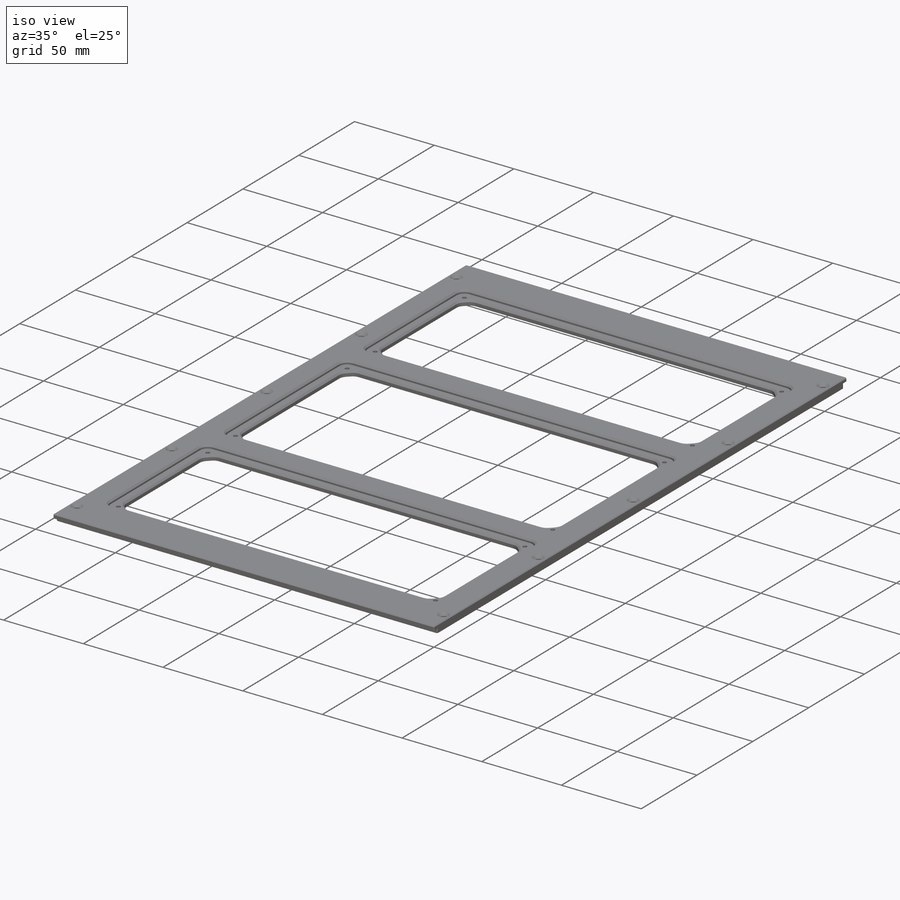
[diagram: iso view]
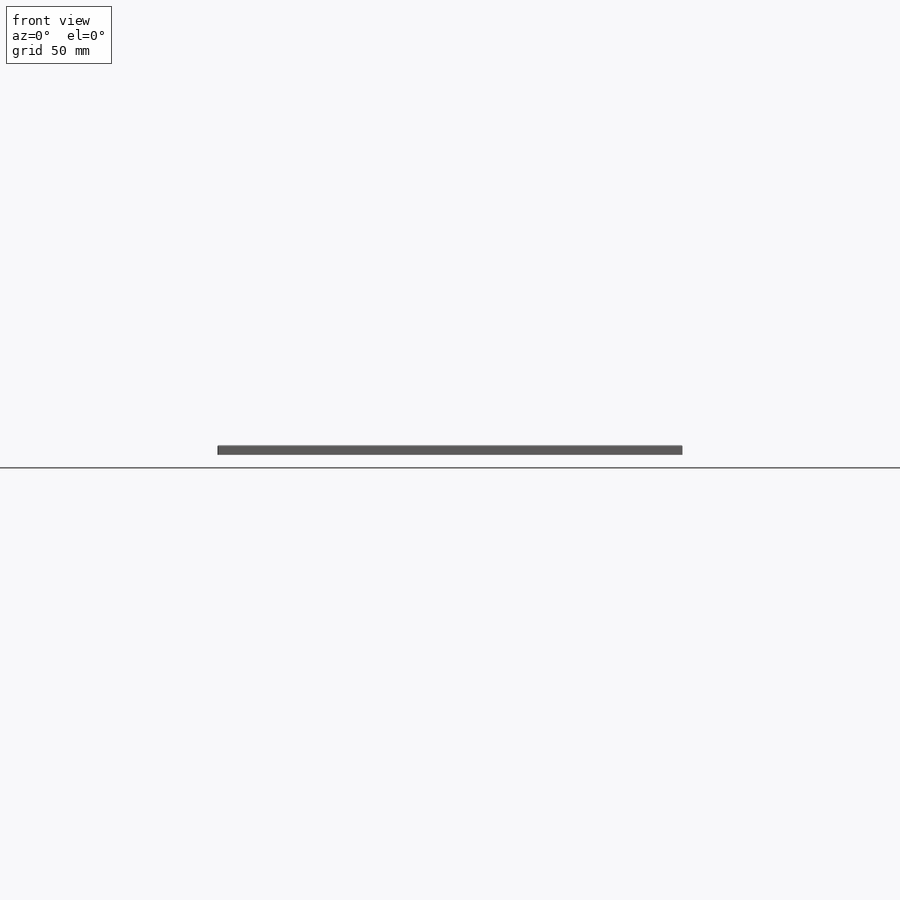
[diagram: front view]
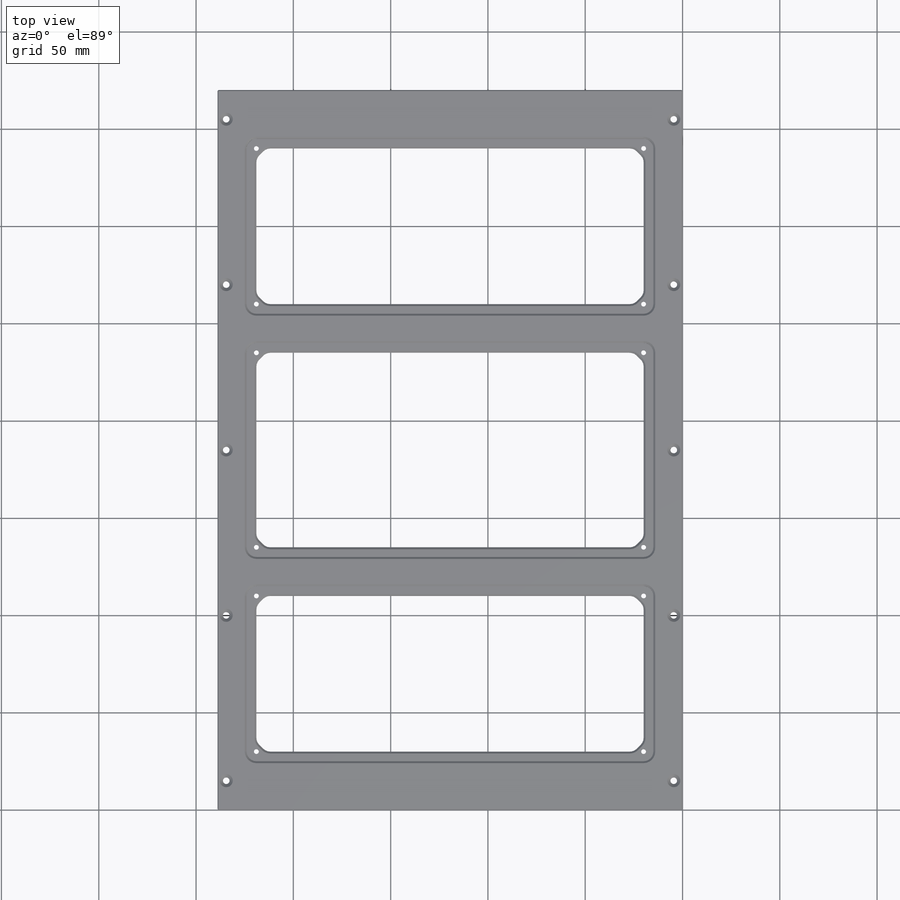
[diagram: top view]
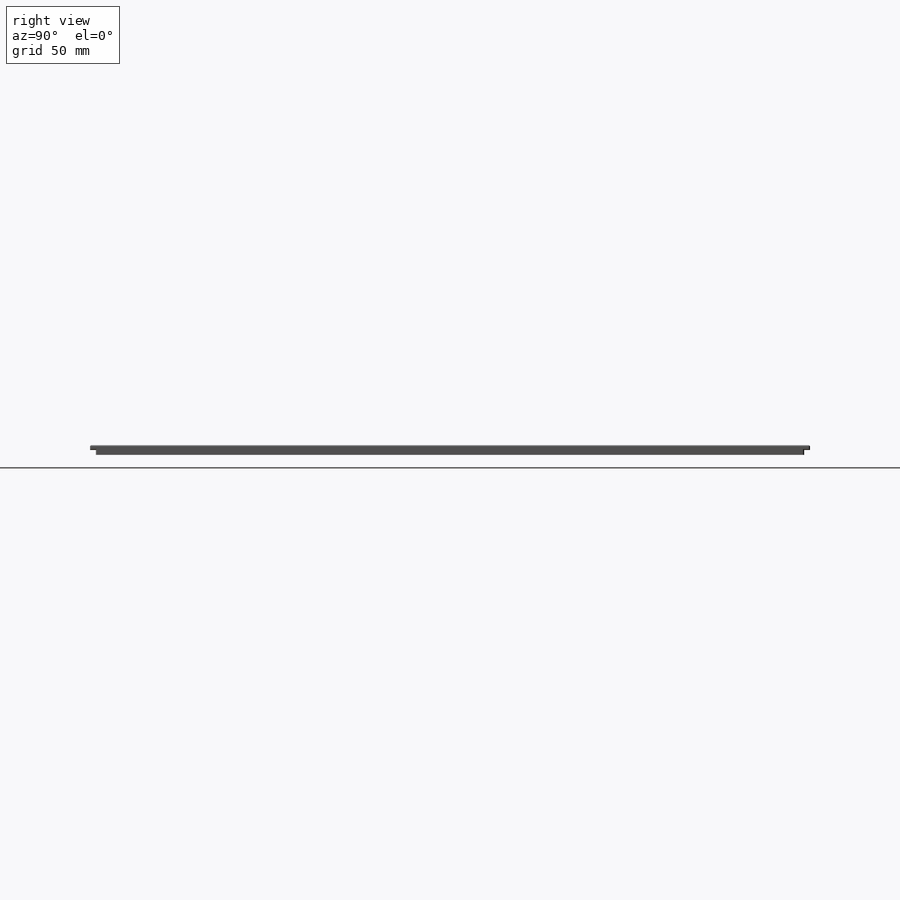
[diagram: right view]
SOLIDWORKS PART (.sldprt)
format: sldprt  version: not decoded by parser v0  size: 899,584 bytes
history: native  units: mm
features: sketch x11, thread x6, cut_extrude x4, chamfer x3, hole x2, mirror x2, material x1, extrude x1, fillet x1, plane x1 (+12 scaffold rows collapsed)
feature tree (44):
  scaffold x12  (default folders/planes/origin — collapsed)
  material  "2014 Alloy"
  sketch  "Sketch1"  dims[c1.D1=~33.806651mm c1.D2=~56.790227mm c2.D1=239.0mm c2.D2=370.0mm]
  extrude  "Boss-Extrude1"  Depth=5mm
  hole  "CSK for M3 Hex Socket Countersunk Cap Screw1"  Diameter=3.4mm Depth=5mm
  sketch  "Sketch3"  dims[D1=85.0mm D2=85.0mm D3=85.0mm D4=85.0mm D5=4.5mm]
  sketch  "Sketch2"  dims[hole-wizard template sketch: 56 standard entries collapsed; hole parameters kept: c17.Near C'Sink Dia.=6.72mm c17.D4=~3.666174mm c17.Near C'Sink Angle=90.0deg]
  sketch  "Sketch4"  dims[c1.D1=~106.368759mm c1.D2=~186.753205mm c2.D1=15.0mm c2.D2=130.0mm c2.D3=~77.945711mm c2.D4=189.0mm c3.D3=15.0mm c3.D4=15.0mm c3.D5=25.0mm]
  cut_extrude  "Cut-Extrude1"  Depth=2mm
  sketch  "Sketch5"  dims[c1.D1=~90.064408mm c1.D2=~175.079076mm c2.D1=5.0mm c2.D2=5.0mm c2.D3=~57.049049mm c2.D4=~145.517281mm c3.D3=5.0mm c3.D4=5.0mm c3.D5=~354.644656mm]
  cut_extrude  "Cut-Extrude2"  [1 undecoded]
  chamfer  "Chamfer1"  Distance=5mm Angle=45deg
  fillet  "Fillet1"  Radius=5mm
  sketch  "Sketch6"  dims[c1.D14=3.0mm c1.D20=3.0mm c1.D23=3.0mm c1.D6=7.0mm c1.D7=7.0mm c1.D8=7.0mm c1.D15=3.0mm c1.D1=40.0mm c1.D2=60.0mm c2.D1=30.0mm c2.D3=5.0mm c2.D4=7.0mm c2.D5=7.0mm c2.D6=7.0mm c2.D7=7.0mm c2.D8=5.0mm c2.D9=~53.661091mm c3.D9=~3.02809deg c4.D9=~47.879584mm c5.D9=~176.97191deg c6.D9=7.0mm c6.D10=7.0mm c6.D11=7.0mm c6.D12=7.0mm c6.D13=5.0mm c6.D15=15.0mm c6.D16=30.0mm c6.D17=3.0mm c6.D18=5.0mm c6.D19=3.0mm c6.D21=4.0mm c6.D22=21.0mm c6.D23=~13.654372mm c6.D24=~36.018165mm c6.D25=~13.654372mm c6.D26=~13.397895mm c6.D27=~13.397895mm c6.D28=~13.654372mm c6.D29=~13.654372mm c6.D30=~30.375232mm c6.D31=~36.018165mm c6.D32=~36.018165mm c6.D33=5.0mm c6.D34=3.0mm c7.D25=4.0mm c7.D22=6.0mm c7.D24=~63.004224mm c8.D25=68.0mm c8.D26=~13.654372mm c8.D23=7.0mm c8.D4=15.0mm c8.D5=15.0mm c8.D9=55.0mm c8.D10=55.0mm c8.D11=55.0mm c8.D12=22.0mm c8.D13=12.5mm c8.D14=4.0mm c8.D15=7.0mm c9.D4=8.0mm c9.D5=~37.157849mm]
  cut_extrude  "Cut-Extrude3"  Depth=4mm
  sketch  "Sketch7"  dims[D1=~299.896394mm]
  sketch  "Sketch8"  dims[D1=5.0mm]
  plane  "Plane1"
  mirror  "Mirror1"
  hole  "M3 Tapped Hole1"  Diameter=2.5mm Depth=15mm
  sketch  "Sketch10"
  sketch  "Sketch9"  dims[hole-wizard template sketch: 50 standard entries collapsed; hole parameters above]
  thread  "Hole Thread1"  Diameter=3mm  [1 undecoded]
  thread  "Hole Thread2"  Diameter=3mm  [1 undecoded]
  thread  "Hole Thread3"  Diameter=3mm  [1 undecoded]
  thread  "Hole Thread4"  Diameter=3mm  [1 undecoded]
  thread  "Hole Thread5"  Diameter=3mm  [1 undecoded]
  thread  "Hole Thread6"  Diameter=3mm  [1 undecoded]
  mirror  "Mirror2"
  chamfer  "Chamfer2"  Distance=1mm Angle=45deg
  sketch  "Sketch12"  dims[c1.D1=~22.052624mm c1.D2=~90.22263mm c2.D1=~3.605453mm c2.D2=239.0mm c3.D1=3.0mm c3.D2=~3.594879mm c3.D3=239.0mm c4.D2=3.0mm]
  cut_extrude  "Cut-Extrude7"  Depth=2.5mm
  chamfer  "Chamfer3"  Distance=0.5mm Angle=45deg
decode coverage: 26 of 30 modeling features carry decoded parameters
note: ~ marks probable driven/reference dimensions
note: 7 parameter values undecoded
note: suppression state not decoded; provenance and decode notes live in map.json
